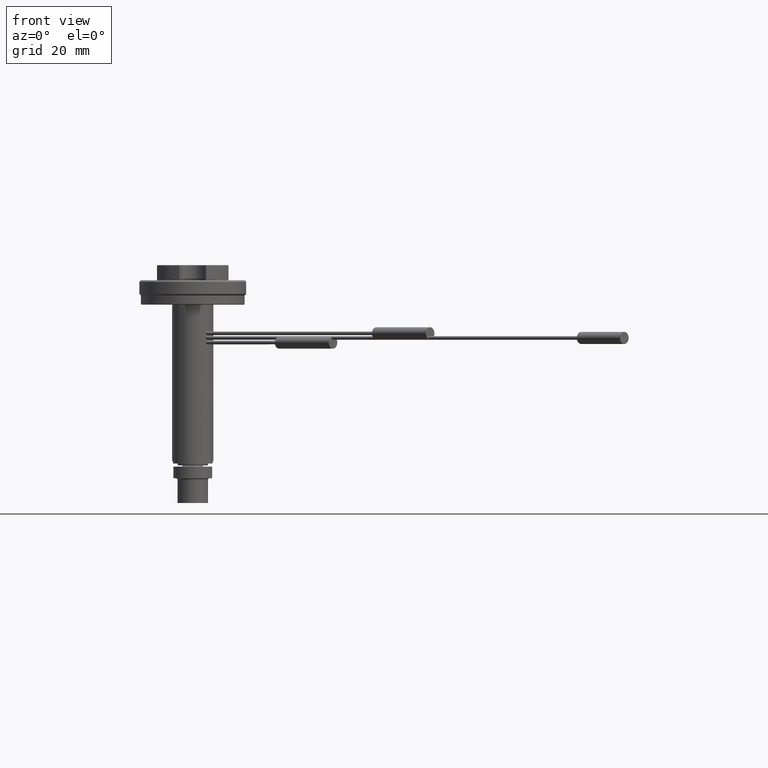
[diagram: clean part render]
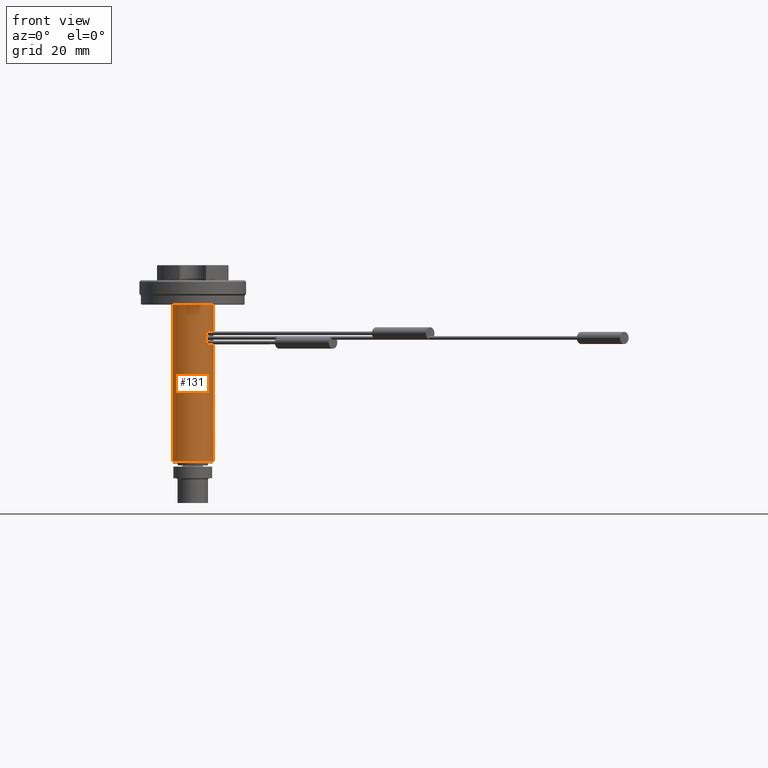
[diagram: same view with one face highlighted and labeled with its STEP entity id]
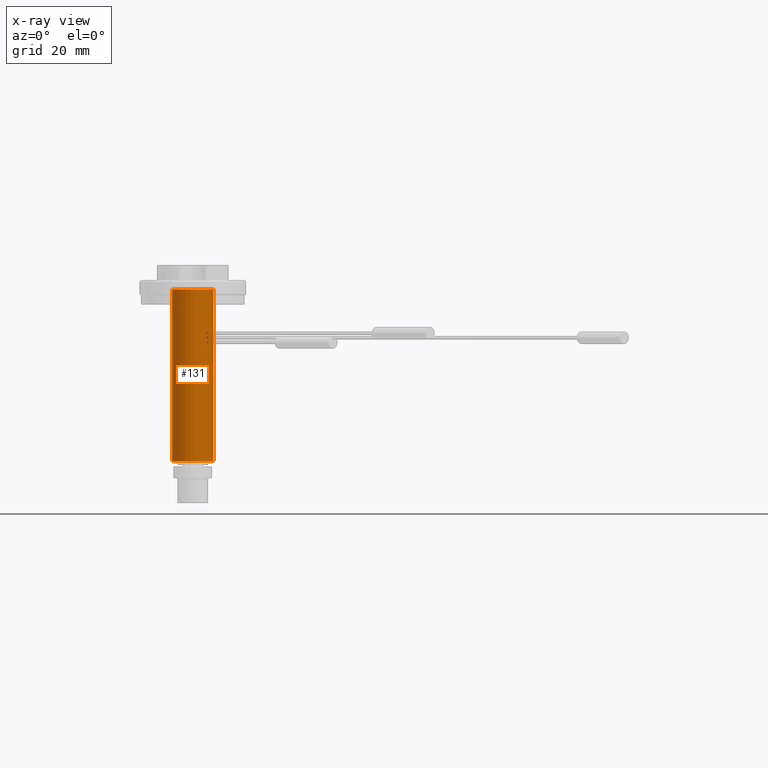
[diagram: x-ray of the same camera — body ghosted, the highlighted face saturated]
A machine part, front view. The second image highlights one B-rep face of the part: STEP entity #131.
The next image is the same camera in x-ray: the body ghosted, the highlighted face saturated — about 0% of this face is hidden behind the body in this view.
In plain terms, the highlighted cylindrical surface (bore or boss wall) has radius 6.75 mm, axis along (0, 0, 1).
Its self-contained STEP definition (entity closure, byte-faithful):
#131=ADVANCED_FACE('',(#321,#322,#323,#324,#325),#209,.T.);
#209=CYLINDRICAL_SURFACE('',#1001,6.75000000000001);
#237=CIRCLE('',#999,6.75);
#238=CIRCLE('',#1000,6.74999999999999);
#321=FACE_BOUND('',#436,.T.);
#322=FACE_BOUND('',#437,.T.);
#323=FACE_BOUND('',#438,.T.);
#324=FACE_BOUND('',#439,.T.);
#325=FACE_BOUND('',#440,.T.);
#436=EDGE_LOOP('',(#574));
#437=EDGE_LOOP('',(#575));
#438=EDGE_LOOP('',(#576));
#439=EDGE_LOOP('',(#577));
#440=EDGE_LOOP('',(#578));
#574=ORIENTED_EDGE('',*,*,#878,.F.);
#575=ORIENTED_EDGE('',*,*,#879,.F.);
#576=ORIENTED_EDGE('',*,*,#880,.T.);
#577=ORIENTED_EDGE('',*,*,#881,.F.);
#578=ORIENTED_EDGE('',*,*,#882,.F.);
#790=VERTEX_POINT('',#1558);
#791=VERTEX_POINT('',#1560);
#792=VERTEX_POINT('',#1562);
#793=VERTEX_POINT('',#1621);
#794=VERTEX_POINT('',#1680);
#878=EDGE_CURVE('',#790,#790,#986,.T.);
#879=EDGE_CURVE('',#791,#791,#237,.T.);
#880=EDGE_CURVE('',#792,#792,#238,.T.);
#881=EDGE_CURVE('',#793,#793,#987,.T.);
#882=EDGE_CURVE('',#794,#794,#988,.T.);
#986=B_SPLINE_CURVE_WITH_KNOTS('',3,(#1500,#1501,#1502,#1503,#1504,#1505,
#1506,#1507,#1508,#1509,#1510,#1511,#1512,#1513,#1514,#1515,#1516,#1517,
#1518,#1519,#1520,#1521,#1522,#1523,#1524,#1525,#1526,#1527,#1528,#1529,
#1530,#1531,#1532,#1533,#1534,#1535,#1536,#1537,#1538,#1539,#1540,#1541,
#1542,#1543,#1544,#1545,#1546,#1547,#1548,#1549,#1550,#1551,#1552,#1553,
#1554,#1555,#1556,#1557),.UNSPECIFIED.,.T.,.F.,(1,3,3,3,3,3,3,3,3,3,3,3,
3,3,3,3,3,3,3,3,3,1),(-0.0346522403765893,0.,0.0535599959946275,0.107110961370301,
0.160797288651025,0.214576664959368,0.268210527151096,0.321688295491676,
0.375241038550613,0.428983637632126,0.482736153422248,0.536301058189785,
0.58977423560765,0.643394022418883,0.697170322997006,0.750869254379597,
0.804378492957119,0.857880716957208,0.911568672134156,0.965347759623411,
1.,1.05355999599463),.UNSPECIFIED.);
#987=B_SPLINE_CURVE_WITH_KNOTS('',3,(#1563,#1564,#1565,#1566,#1567,#1568,
#1569,#1570,#1571,#1572,#1573,#1574,#1575,#1576,#1577,#1578,#1579,#1580,
#1581,#1582,#1583,#1584,#1585,#1586,#1587,#1588,#1589,#1590,#1591,#1592,
#1593,#1594,#1595,#1596,#1597,#1598,#1599,#1600,#1601,#1602,#1603,#1604,
#1605,#1606,#1607,#1608,#1609,#1610,#1611,#1612,#1613,#1614,#1615,#1616,
#1617,#1618,#1619,#1620),.UNSPECIFIED.,.T.,.F.,(1,3,3,3,3,3,3,3,3,3,3,3,
3,3,3,3,3,3,3,3,3,1),(-0.0346522403765865,0.,0.0535599959946276,0.107110961370301,
0.160797288651027,0.214576664959369,0.268210527151098,0.321688295491675,
0.375241038550614,0.428983637632128,0.48273615342225,0.536301058189786,
0.589774235607651,0.643394022418883,0.697170322997007,0.750869254379598,
0.804378492957119,0.857880716957211,0.911568672134155,0.965347759623413,
1.,1.05355999599463),.UNSPECIFIED.);
#988=B_SPLINE_CURVE_WITH_KNOTS('',3,(#1622,#1623,#1624,#1625,#1626,#1627,
#1628,#1629,#1630,#1631,#1632,#1633,#1634,#1635,#1636,#1637,#1638,#1639,
#1640,#1641,#1642,#1643,#1644,#1645,#1646,#1647,#1648,#1649,#1650,#1651,
#1652,#1653,#1654,#1655,#1656,#1657,#1658,#1659,#1660,#1661,#1662,#1663,
#1664,#1665,#1666,#1667,#1668,#1669,#1670,#1671,#1672,#1673,#1674,#1675,
#1676,#1677,#1678,#1679),.UNSPECIFIED.,.T.,.F.,(1,3,3,3,3,3,3,3,3,3,3,3,
3,3,3,3,3,3,3,3,3,1),(-0.0346522403765868,0.,0.0535599959946278,0.107110961370302,
0.160797288651027,0.21457666495937,0.268210527151096,0.321688295491675,
0.375241038550614,0.428983637632128,0.48273615342225,0.536301058189786,
0.58977423560765,0.643394022418883,0.697170322997007,0.750869254379598,
0.804378492957119,0.857880716957211,0.911568672134156,0.965347759623413,
1.,1.05355999599463),.UNSPECIFIED.);
#999=AXIS2_PLACEMENT_3D('',#1559,#1163,#1164);
#1000=AXIS2_PLACEMENT_3D('',#1561,#1165,#1166);
#1001=AXIS2_PLACEMENT_3D('',#1681,#1167,#1168);
#1163=DIRECTION('',(0.,0.,1.));
#1164=DIRECTION('',(-1.,0.,0.));
#1165=DIRECTION('',(0.,0.,1.));
#1166=DIRECTION('',(1.,0.,0.));
#1167=DIRECTION('',(0.,0.,1.));
#1168=DIRECTION('',(1.,0.,0.));
#1500=CARTESIAN_POINT('',(4.32981312881022,-5.17834126623408,-23.9));
#1501=CARTESIAN_POINT('',(4.32981312881022,-5.17834126623408,-23.9670064301583));
#1502=CARTESIAN_POINT('',(4.33872451259777,-5.17092471646893,-24.0349362918585));
#1503=CARTESIAN_POINT('',(4.35568364499967,-5.15659965332606,-24.0981584563002));
#1504=CARTESIAN_POINT('',(4.37264115143551,-5.14227596360645,-24.1613745592823));
#1505=CARTESIAN_POINT('',(4.39809667090228,-5.12064397715602,-24.2216259393455));
#1506=CARTESIAN_POINT('',(4.42965326392806,-5.0931985982653,-24.2739703125111));
#1507=CARTESIAN_POINT('',(4.46128832944362,-5.06568497033347,-24.326444851607));
#1508=CARTESIAN_POINT('',(4.4999104689927,-5.03155474915368,-24.3724206802881));
#1509=CARTESIAN_POINT('',(4.54200065520222,-4.99326847346933,-24.4081128596072));
#1510=CARTESIAN_POINT('',(4.58415942876994,-4.95491980902548,-24.4438632005195));
#1511=CARTESIAN_POINT('',(4.63095199477887,-4.91132248371356,-24.470281159596));
#1512=CARTESIAN_POINT('',(4.67824938845985,-4.8658486062942,-24.4851523448932));
#1513=CARTESIAN_POINT('',(4.72541987267493,-4.82049674543953,-24.4999836274803));
#1514=CARTESIAN_POINT('',(4.77439013846134,-4.77201657916404,-24.5037371452256));
#1515=CARTESIAN_POINT('',(4.82104559987273,-4.72440676952651,-24.496096022663));
#1516=CARTESIAN_POINT('',(4.86757052131182,-4.67693017008653,-24.4884762796324));
#1517=CARTESIAN_POINT('',(4.91307817740423,-4.62901641525087,-24.4693203699528));
#1518=CARTESIAN_POINT('',(4.95400222717407,-4.58479682572243,-24.4402255878515));
#1519=CARTESIAN_POINT('',(4.99498479268788,-4.54051400828292,-24.4110892042266));
#1520=CARTESIAN_POINT('',(5.03251155530978,-4.49873001989826,-24.3711891531049));
#1521=CARTESIAN_POINT('',(5.06383622556902,-4.46318974284256,-24.3238064433137));
#1522=CARTESIAN_POINT('',(5.09526882254384,-4.42752701452588,-24.2762604800803));
#1523=CARTESIAN_POINT('',(5.12133985036414,-4.39718394516673,-24.2198657796859));
#1524=CARTESIAN_POINT('',(5.14021989747712,-4.37500164635173,-24.1592691922931));
#1525=CARTESIAN_POINT('',(5.15910203567868,-4.35281689070221,-24.0986658934323));
#1526=CARTESIAN_POINT('',(5.17132424059313,-4.33819774053932,-24.0321784926327));
#1527=CARTESIAN_POINT('',(5.17604256702156,-4.33256082985351,-23.9653397239969));
#1528=CARTESIAN_POINT('',(5.18074475081457,-4.32694320452143,-23.8987296283644));
#1529=CARTESIAN_POINT('',(5.17812749912989,-4.33009534818066,-23.8299315846175));
#1530=CARTESIAN_POINT('',(5.16837006174347,-4.34171059662824,-23.7646594503938));
#1531=CARTESIAN_POINT('',(5.15862832649702,-4.35330715325647,-23.6994923552441));
#1532=CARTESIAN_POINT('',(5.1414977870851,-4.37364637575261,-23.6360473592978));
#1533=CARTESIAN_POINT('',(5.11815294361674,-4.40079656945733,-23.5795317235257));
#1534=CARTESIAN_POINT('',(5.09474463607562,-4.42802057226132,-23.5228624472964));
#1535=CARTESIAN_POINT('',(5.06443075409757,-4.46282495707599,-23.4715991423169));
#1536=CARTESIAN_POINT('',(5.02935668339147,-4.50200748013879,-23.4299453128471));
#1537=CARTESIAN_POINT('',(4.99418420988582,-4.5412999325564,-23.3881746205967));
#1538=CARTESIAN_POINT('',(4.9532338519406,-4.58606773506539,-23.3549156940318));
#1539=CARTESIAN_POINT('',(4.90959846721883,-4.63231506815789,-23.3329400752102));
#1540=CARTESIAN_POINT('',(4.86602703661761,-4.67849461893256,-23.3109966649135));
#1541=CARTESIAN_POINT('',(4.81856059604697,-4.72741855801883,-23.2997008267163));
#1542=CARTESIAN_POINT('',(4.7710417195123,-4.77489904717087,-23.3000061996056));
#1543=CARTESIAN_POINT('',(4.72368590560334,-4.82221660542479,-23.3003105245976));
#1544=CARTESIAN_POINT('',(4.67497339107114,-4.86940500316651,-23.3121426392884));
#1545=CARTESIAN_POINT('',(4.62905079841893,-4.91267632820006,-23.334510584159));
#1546=CARTESIAN_POINT('',(4.58313096080438,-4.95594505725366,-23.3568771871078));
#1547=CARTESIAN_POINT('',(4.53874810439043,-4.99649797666823,-23.390387249672));
#1548=CARTESIAN_POINT('',(4.49982829795764,-5.03130651907631,-23.4322763099454));
#1549=CARTESIAN_POINT('',(4.46077603372946,-5.06623352720174,-23.4743079334298));
#1550=CARTESIAN_POINT('',(4.42616337388461,-5.09635585967287,-23.5259339047537));
#1551=CARTESIAN_POINT('',(4.39918492126837,-5.11953826321136,-23.582910846329));
#1552=CARTESIAN_POINT('',(4.37216346195095,-5.14275762211996,-23.6399786155858));
#1553=CARTESIAN_POINT('',(4.35207130471317,-5.15966961179893,-23.7039977150746));
#1554=CARTESIAN_POINT('',(4.34083881049648,-5.16910228388718,-23.7696550372151));
#1555=CARTESIAN_POINT('',(4.3335405509151,-5.17523111761885,-23.8123155693423));
#1556=CARTESIAN_POINT('',(4.32981312881022,-5.17834126623408,-23.8562878941573));
#1557=CARTESIAN_POINT('',(4.32981312881022,-5.17834126623408,-23.9));
#1558=CARTESIAN_POINT('',(4.32981312881022,-5.17834126623408,-23.9));
#1559=CARTESIAN_POINT('',(0.,0.,-8.));
#1560=CARTESIAN_POINT('',(-6.75,0.,-8.));
#1561=CARTESIAN_POINT('',(0.,0.,-64.3645993831955));
#1562=CARTESIAN_POINT('',(6.74999999999999,0.,-64.3645993831955));
#1563=CARTESIAN_POINT('',(4.32981312881023,-5.17834126623408,-22.4));
#1564=CARTESIAN_POINT('',(4.32981312881023,-5.17834126623408,-22.4670064301583));
#1565=CARTESIAN_POINT('',(4.33872451259777,-5.17092471646893,-22.5349362918585));
#1566=CARTESIAN_POINT('',(4.35568364499967,-5.15659965332606,-22.5981584563002));
#1567=CARTESIAN_POINT('',(4.37264115143551,-5.14227596360645,-22.6613745592823));
#1568=CARTESIAN_POINT('',(4.39809667090229,-5.12064397715602,-22.7216259393455));
#1569=CARTESIAN_POINT('',(4.42965326392806,-5.0931985982653,-22.7739703125111));
#1570=CARTESIAN_POINT('',(4.46128832944363,-5.06568497033347,-22.826444851607));
#1571=CARTESIAN_POINT('',(4.49991046899271,-5.03155474915367,-22.8724206802881));
#1572=CARTESIAN_POINT('',(4.54200065520223,-4.99326847346932,-22.9081128596072));
#1573=CARTESIAN_POINT('',(4.58415942876995,-4.95491980902548,-22.9438632005195));
#1574=CARTESIAN_POINT('',(4.63095199477887,-4.91132248371356,-22.970281159596));
#1575=CARTESIAN_POINT('',(4.67824938845985,-4.86584860629419,-22.9851523448932));
#1576=CARTESIAN_POINT('',(4.72541987267493,-4.82049674543952,-22.9999836274803));
#1577=CARTESIAN_POINT('',(4.77439013846135,-4.77201657916403,-23.0037371452256));
#1578=CARTESIAN_POINT('',(4.82104559987273,-4.72440676952651,-22.996096022663));
#1579=CARTESIAN_POINT('',(4.86757052131182,-4.67693017008652,-22.9884762796324));
#1580=CARTESIAN_POINT('',(4.91307817740423,-4.62901641525087,-22.9693203699528));
#1581=CARTESIAN_POINT('',(4.95400222717407,-4.58479682572243,-22.9402255878515));
#1582=CARTESIAN_POINT('',(4.99498479268788,-4.54051400828292,-22.9110892042266));
#1583=CARTESIAN_POINT('',(5.03251155530977,-4.49873001989826,-22.8711891531049));
#1584=CARTESIAN_POINT('',(5.06383622556902,-4.46318974284256,-22.8238064433137));
#1585=CARTESIAN_POINT('',(5.09526882254384,-4.42752701452588,-22.7762604800803));
#1586=CARTESIAN_POINT('',(5.12133985036415,-4.39718394516672,-22.7198657796859));
#1587=CARTESIAN_POINT('',(5.14021989747713,-4.37500164635173,-22.6592691922931));
#1588=CARTESIAN_POINT('',(5.15910203567869,-4.35281689070221,-22.5986658934322));
#1589=CARTESIAN_POINT('',(5.17132424059312,-4.33819774053932,-22.5321784926327));
#1590=CARTESIAN_POINT('',(5.17604256702156,-4.33256082985352,-22.4653397239969));
#1591=CARTESIAN_POINT('',(5.18074475081457,-4.32694320452144,-22.3987296283644));
#1592=CARTESIAN_POINT('',(5.17812749912989,-4.33009534818066,-22.3299315846175));
#1593=CARTESIAN_POINT('',(5.16837006174347,-4.34171059662824,-22.2646594503938));
#1594=CARTESIAN_POINT('',(5.15862832649701,-4.35330715325648,-22.1994923552441));
#1595=CARTESIAN_POINT('',(5.1414977870851,-4.37364637575261,-22.1360473592978));
#1596=CARTESIAN_POINT('',(5.11815294361674,-4.40079656945733,-22.0795317235257));
#1597=CARTESIAN_POINT('',(5.09474463607561,-4.42802057226132,-22.0228624472964));
#1598=CARTESIAN_POINT('',(5.06443075409756,-4.462824957076,-21.9715991423169));
#1599=CARTESIAN_POINT('',(5.02935668339147,-4.5020074801388,-21.9299453128471));
#1600=CARTESIAN_POINT('',(4.99418420988582,-4.5412999325564,-21.8881746205967));
#1601=CARTESIAN_POINT('',(4.95323385194059,-4.5860677350654,-21.8549156940318));
#1602=CARTESIAN_POINT('',(4.90959846721882,-4.6323150681579,-21.8329400752102));
#1603=CARTESIAN_POINT('',(4.8660270366176,-4.67849461893257,-21.8109966649135));
#1604=CARTESIAN_POINT('',(4.81856059604696,-4.72741855801884,-21.7997008267163));
#1605=CARTESIAN_POINT('',(4.77104171951229,-4.77489904717088,-21.8000061996056));
#1606=CARTESIAN_POINT('',(4.72368590560333,-4.8222166054248,-21.8003105245976));
#1607=CARTESIAN_POINT('',(4.67497339107113,-4.86940500316652,-21.8121426392884));
#1608=CARTESIAN_POINT('',(4.62905079841892,-4.91267632820006,-21.834510584159));
#1609=CARTESIAN_POINT('',(4.58313096080437,-4.95594505725366,-21.8568771871078));
#1610=CARTESIAN_POINT('',(4.53874810439042,-4.99649797666824,-21.8903872496721));
#1611=CARTESIAN_POINT('',(4.49982829795763,-5.03130651907632,-21.9322763099454));
#1612=CARTESIAN_POINT('',(4.46077603372945,-5.06623352720174,-21.9743079334298));
#1613=CARTESIAN_POINT('',(4.4261633738846,-5.09635585967287,-22.0259339047537));
#1614=CARTESIAN_POINT('',(4.39918492126836,-5.11953826321136,-22.082910846329));
#1615=CARTESIAN_POINT('',(4.37216346195094,-5.14275762211997,-22.1399786155858));
#1616=CARTESIAN_POINT('',(4.35207130471317,-5.15966961179894,-22.2039977150746));
#1617=CARTESIAN_POINT('',(4.34083881049648,-5.16910228388718,-22.2696550372151));
#1618=CARTESIAN_POINT('',(4.3335405509151,-5.17523111761885,-22.3123155693423));
#1619=CARTESIAN_POINT('',(4.32981312881022,-5.17834126623407,-22.3562878941573));
#1620=CARTESIAN_POINT('',(4.32981312881023,-5.17834126623408,-22.4));
#1621=CARTESIAN_POINT('',(4.32981312881023,-5.17834126623408,-22.4));
#1622=CARTESIAN_POINT('',(4.32981312881022,-5.17834126623408,-25.4));
#1623=CARTESIAN_POINT('',(4.32981312881022,-5.17834126623408,-25.4670064301583));
#1624=CARTESIAN_POINT('',(4.33872451259777,-5.17092471646892,-25.5349362918585));
#1625=CARTESIAN_POINT('',(4.35568364499968,-5.15659965332606,-25.5981584563002));
#1626=CARTESIAN_POINT('',(4.37264115143551,-5.14227596360645,-25.6613745592823));
#1627=CARTESIAN_POINT('',(4.39809667090229,-5.12064397715602,-25.7216259393455));
#1628=CARTESIAN_POINT('',(4.42965326392806,-5.0931985982653,-25.7739703125111));
#1629=CARTESIAN_POINT('',(4.46128832944363,-5.06568497033347,-25.826444851607));
#1630=CARTESIAN_POINT('',(4.49991046899271,-5.03155474915367,-25.8724206802881));
#1631=CARTESIAN_POINT('',(4.54200065520222,-4.99326847346932,-25.9081128596072));
#1632=CARTESIAN_POINT('',(4.58415942876995,-4.95491980902548,-25.9438632005195));
#1633=CARTESIAN_POINT('',(4.63095199477887,-4.91132248371355,-25.970281159596));
#1634=CARTESIAN_POINT('',(4.67824938845985,-4.86584860629419,-25.9851523448932));
#1635=CARTESIAN_POINT('',(4.72541987267493,-4.82049674543952,-25.9999836274803));
#1636=CARTESIAN_POINT('',(4.77439013846134,-4.77201657916403,-26.0037371452256));
#1637=CARTESIAN_POINT('',(4.82104559987273,-4.72440676952651,-25.996096022663));
#1638=CARTESIAN_POINT('',(4.86757052131182,-4.67693017008653,-25.9884762796324));
#1639=CARTESIAN_POINT('',(4.91307817740423,-4.62901641525087,-25.9693203699528));
#1640=CARTESIAN_POINT('',(4.95400222717407,-4.58479682572243,-25.9402255878515));
#1641=CARTESIAN_POINT('',(4.99498479268788,-4.54051400828292,-25.9110892042266));
#1642=CARTESIAN_POINT('',(5.03251155530977,-4.49873001989826,-25.8711891531049));
#1643=CARTESIAN_POINT('',(5.06383622556902,-4.46318974284256,-25.8238064433137));
#1644=CARTESIAN_POINT('',(5.09526882254384,-4.42752701452588,-25.7762604800803));
#1645=CARTESIAN_POINT('',(5.12133985036415,-4.39718394516672,-25.7198657796859));
#1646=CARTESIAN_POINT('',(5.14021989747713,-4.37500164635173,-25.6592691922931));
#1647=CARTESIAN_POINT('',(5.15910203567869,-4.35281689070221,-25.5986658934322));
#1648=CARTESIAN_POINT('',(5.17132424059312,-4.33819774053932,-25.5321784926327));
#1649=CARTESIAN_POINT('',(5.17604256702156,-4.33256082985352,-25.4653397239969));
#1650=CARTESIAN_POINT('',(5.18074475081457,-4.32694320452144,-25.3987296283644));
#1651=CARTESIAN_POINT('',(5.17812749912989,-4.33009534818066,-25.3299315846175));
#1652=CARTESIAN_POINT('',(5.16837006174347,-4.34171059662824,-25.2646594503938));
#1653=CARTESIAN_POINT('',(5.15862832649702,-4.35330715325647,-25.1994923552441));
#1654=CARTESIAN_POINT('',(5.1414977870851,-4.37364637575261,-25.1360473592978));
#1655=CARTESIAN_POINT('',(5.11815294361674,-4.40079656945733,-25.0795317235257));
#1656=CARTESIAN_POINT('',(5.09474463607562,-4.42802057226132,-25.0228624472964));
#1657=CARTESIAN_POINT('',(5.06443075409757,-4.46282495707599,-24.9715991423169));
#1658=CARTESIAN_POINT('',(5.02935668339147,-4.50200748013879,-24.9299453128471));
#1659=CARTESIAN_POINT('',(4.99418420988582,-4.5412999325564,-24.8881746205967));
#1660=CARTESIAN_POINT('',(4.95323385194059,-4.5860677350654,-24.8549156940318));
#1661=CARTESIAN_POINT('',(4.90959846721882,-4.6323150681579,-24.8329400752102));
#1662=CARTESIAN_POINT('',(4.8660270366176,-4.67849461893257,-24.8109966649135));
#1663=CARTESIAN_POINT('',(4.81856059604696,-4.72741855801884,-24.7997008267163));
#1664=CARTESIAN_POINT('',(4.77104171951229,-4.77489904717088,-24.8000061996056));
#1665=CARTESIAN_POINT('',(4.72368590560333,-4.8222166054248,-24.8003105245976));
#1666=CARTESIAN_POINT('',(4.67497339107113,-4.86940500316652,-24.8121426392884));
#1667=CARTESIAN_POINT('',(4.62905079841892,-4.91267632820006,-24.834510584159));
#1668=CARTESIAN_POINT('',(4.58313096080437,-4.95594505725366,-24.8568771871078));
#1669=CARTESIAN_POINT('',(4.53874810439043,-4.99649797666824,-24.8903872496721));
#1670=CARTESIAN_POINT('',(4.49982829795763,-5.03130651907632,-24.9322763099454));
#1671=CARTESIAN_POINT('',(4.46077603372945,-5.06623352720175,-24.9743079334298));
#1672=CARTESIAN_POINT('',(4.4261633738846,-5.09635585967287,-25.0259339047537));
#1673=CARTESIAN_POINT('',(4.39918492126836,-5.11953826321136,-25.082910846329));
#1674=CARTESIAN_POINT('',(4.37216346195094,-5.14275762211997,-25.1399786155858));
#1675=CARTESIAN_POINT('',(4.35207130471317,-5.15966961179893,-25.2039977150746));
#1676=CARTESIAN_POINT('',(4.34083881049648,-5.16910228388718,-25.2696550372151));
#1677=CARTESIAN_POINT('',(4.3335405509151,-5.17523111761885,-25.3123155693423));
#1678=CARTESIAN_POINT('',(4.32981312881022,-5.17834126623408,-25.3562878941573));
#1679=CARTESIAN_POINT('',(4.32981312881022,-5.17834126623408,-25.4));
#1680=CARTESIAN_POINT('',(4.32981312881022,-5.17834126623408,-25.4));
#1681=CARTESIAN_POINT('',(0.,0.,0.));